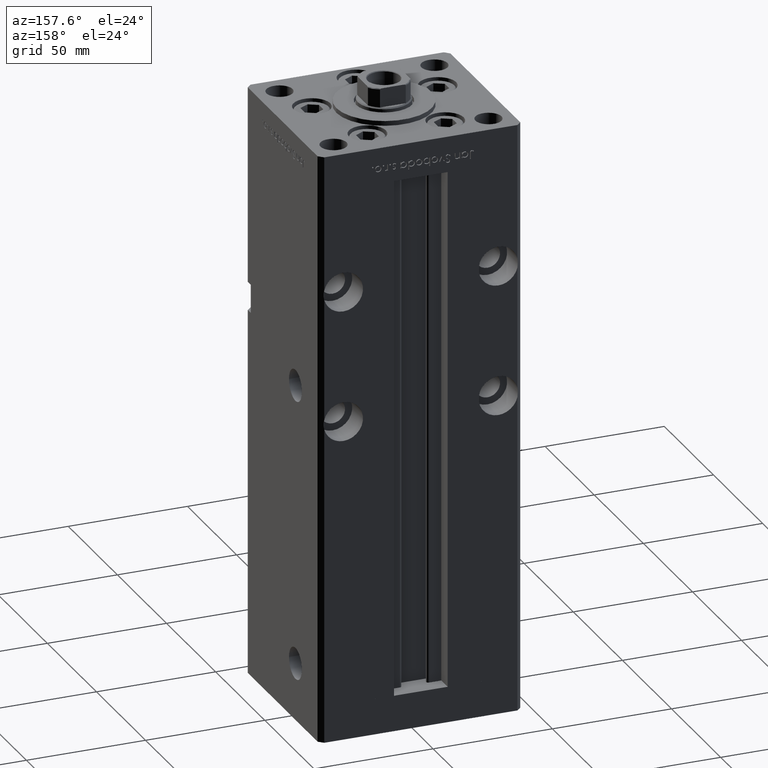
[diagram: clean part render]
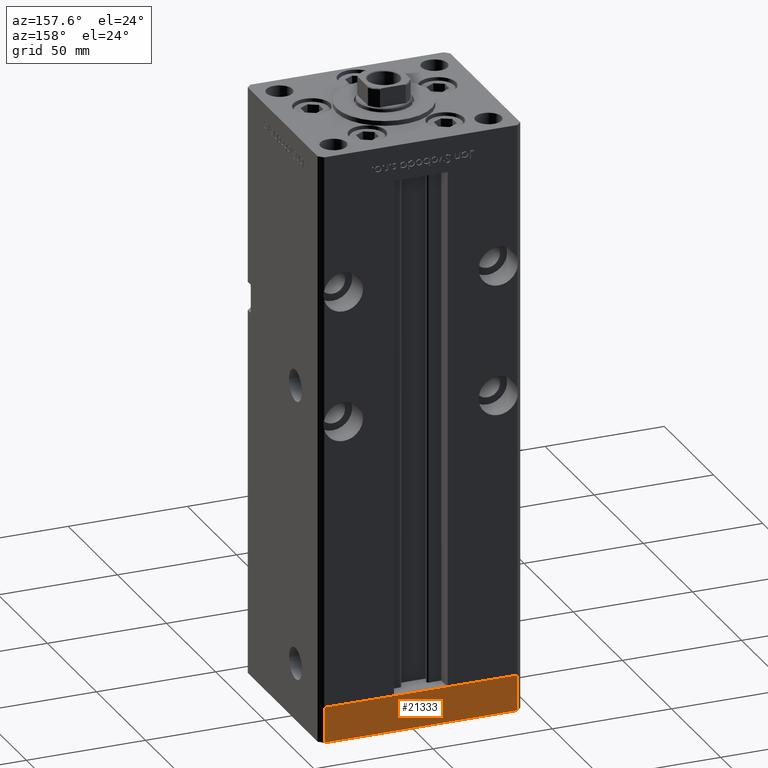
[diagram: same view with one face highlighted and labeled with its STEP entity id]
A machine part, auxiliary view. The second image highlights one B-rep face of the part: STEP entity #21333.
In plain terms, the highlighted planar face has unit normal (-0, 1, 0).
Its self-contained STEP definition (entity closure, byte-faithful):
#786 = VECTOR ( 'NONE', #43230, 1000.000000000000000 ) ;
#1737 = CARTESIAN_POINT ( 'NONE',  ( 40.49999999999991473, 37.50000000000000711, -15.00000000000000000 ) ) ;
#1798 = CARTESIAN_POINT ( 'NONE',  ( 40.49999999999991473, 37.50000000000000711, 0.000000000000000000 ) ) ;
#2251 = CARTESIAN_POINT ( 'NONE',  ( 40.49999999999991473, 37.50000000000000711, -15.00000000000000000 ) ) ;
#7022 = EDGE_LOOP ( 'NONE', ( #21051, #46387, #15476, #52801 ) ) ;
#9817 = PLANE ( 'NONE',  #47338 ) ;
#9874 = LINE ( 'NONE', #51314, #42153 ) ;
#15338 = EDGE_CURVE ( 'NONE', #23404, #39476, #42715, .T. ) ;
#15476 = ORIENTED_EDGE ( 'NONE', *, *, #23054, .T. ) ;
#17605 = VECTOR ( 'NONE', #49912, 1000.000000000000000 ) ;
#18229 = VECTOR ( 'NONE', #22248, 1000.000000000000000 ) ;
#20172 = EDGE_CURVE ( 'NONE', #39713, #39476, #9874, .T. ) ;
#21051 = ORIENTED_EDGE ( 'NONE', *, *, #15338, .F. ) ;
#21333 = ADVANCED_FACE ( 'NONE', ( #38590 ), #9817, .T. ) ;
#22248 = DIRECTION ( 'NONE',  ( -1.000000000000000000, -3.426614273534436165E-16, 0.000000000000000000 ) ) ;
#22773 = DIRECTION ( 'NONE',  ( 0.000000000000000000, 0.000000000000000000, 1.000000000000000000 ) ) ;
#23054 = EDGE_CURVE ( 'NONE', #34640, #39713, #26014, .T. ) ;
#23404 = VERTEX_POINT ( 'NONE', #35607 ) ;
#26014 = LINE ( 'NONE', #34352, #18229 ) ;
#27981 = CARTESIAN_POINT ( 'NONE',  ( -40.50000000000000711, 37.49999999999997868, -15.00000000000000000 ) ) ;
#32348 = CARTESIAN_POINT ( 'NONE',  ( -40.50000000000000711, 37.49999999999997868, 0.000000000000000000 ) ) ;
#33483 = LINE ( 'NONE', #42354, #17605 ) ;
#34352 = CARTESIAN_POINT ( 'NONE',  ( 40.49999999999991473, 37.50000000000000711, -15.00000000000000000 ) ) ;
#34640 = VERTEX_POINT ( 'NONE', #2251 ) ;
#35607 = CARTESIAN_POINT ( 'NONE',  ( 40.49999999999991473, 37.50000000000000711, 0.000000000000000000 ) ) ;
#36167 = EDGE_CURVE ( 'NONE', #34640, #23404, #33483, .T. ) ;
#38590 = FACE_OUTER_BOUND ( 'NONE', #7022, .T. ) ;
#39476 = VERTEX_POINT ( 'NONE', #32348 ) ;
#39713 = VERTEX_POINT ( 'NONE', #27981 ) ;
#42153 = VECTOR ( 'NONE', #22773, 1000.000000000000000 ) ;
#42354 = CARTESIAN_POINT ( 'NONE',  ( 40.49999999999991473, 37.50000000000000711, -15.00000000000000000 ) ) ;
#42648 = DIRECTION ( 'NONE',  ( -3.426614273534436165E-16, 1.000000000000000000, 0.000000000000000000 ) ) ;
#42715 = LINE ( 'NONE', #1798, #786 ) ;
#43169 = DIRECTION ( 'NONE',  ( -1.000000000000000000, -3.426614273534436165E-16, 0.000000000000000000 ) ) ;
#43230 = DIRECTION ( 'NONE',  ( -1.000000000000000000, -3.426614273534436165E-16, 0.000000000000000000 ) ) ;
#46387 = ORIENTED_EDGE ( 'NONE', *, *, #36167, .F. ) ;
#47338 = AXIS2_PLACEMENT_3D ( 'NONE', #1737, #42648, #43169 ) ;
#49912 = DIRECTION ( 'NONE',  ( 0.000000000000000000, 0.000000000000000000, 1.000000000000000000 ) ) ;
#51314 = CARTESIAN_POINT ( 'NONE',  ( -40.50000000000000711, 37.49999999999997868, -15.00000000000000000 ) ) ;
#52801 = ORIENTED_EDGE ( 'NONE', *, *, #20172, .T. ) ;